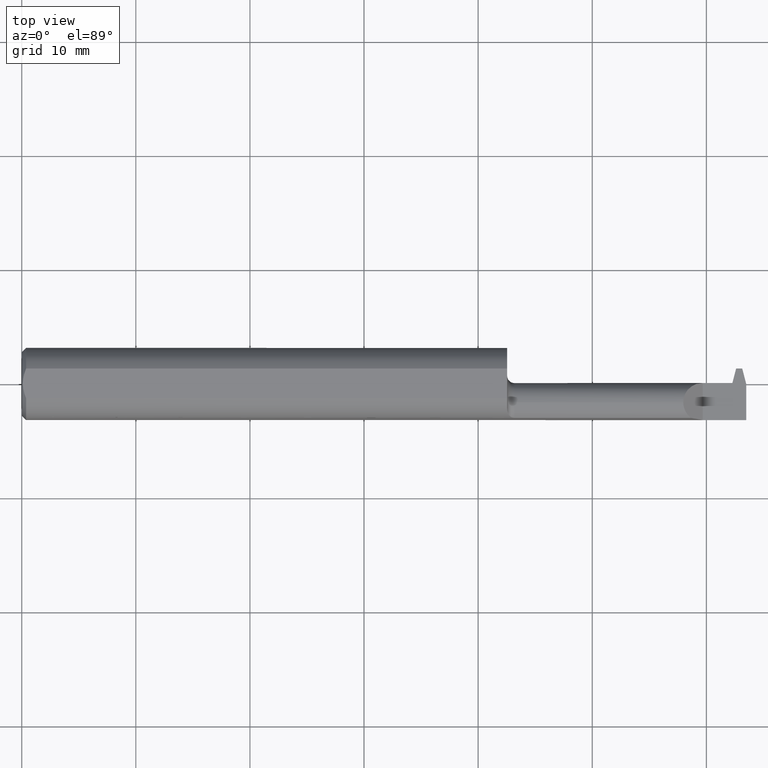
[diagram: clean part render]
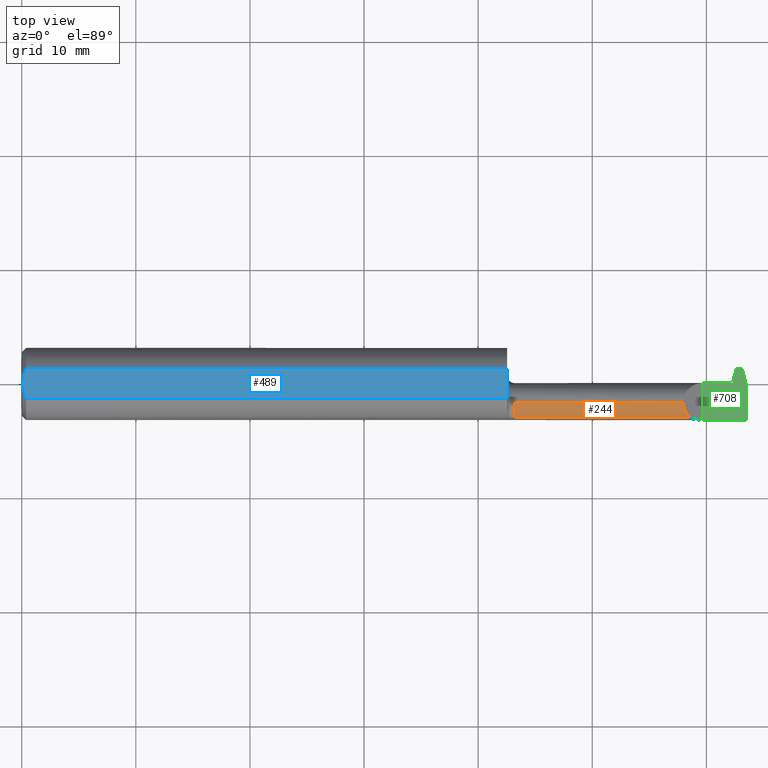
[diagram: same view with three faces highlighted in distinct colors, each labeled with its STEP entity id]
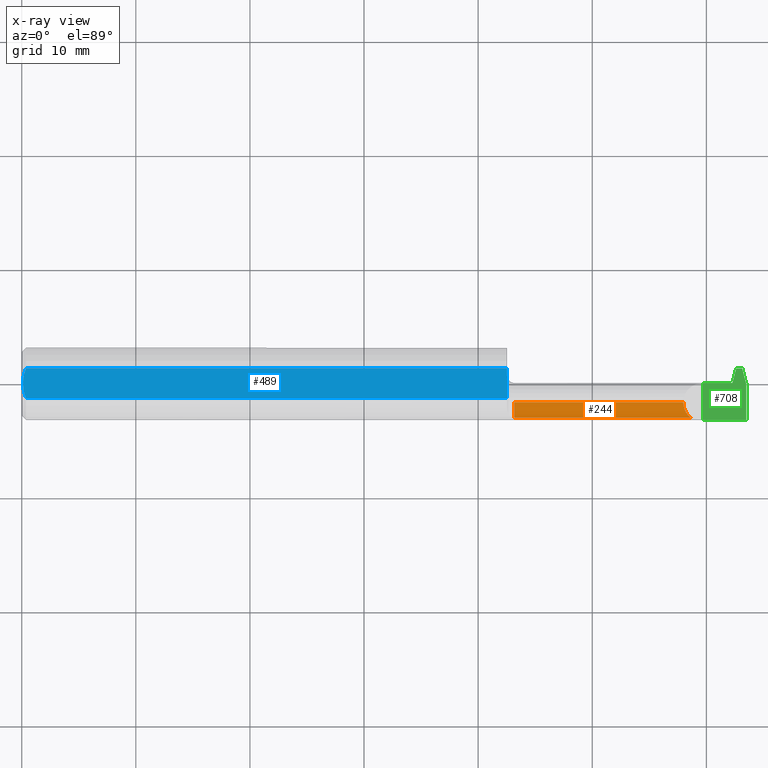
[diagram: x-ray of the same camera — body ghosted, the three highlighted faces saturated]
A machine part, top view with three faces highlighted in distinct colors.
The next image is the same camera in x-ray (body ghosted, the three faces saturated) — at least one of them is partly hidden behind the body in this view.
Their STEP definitions:

[orange] entity #244 — the highlighted cylindrical surface (edge-blend (fillet) strip) has radius 1.7145 mm, axis along (-1, -0, -0).
#14 = CARTESIAN_POINT ( 'NONE',  ( 2.308991305842072794, -0.1178880730380730268, 0.04110869415792675619 ) ) ;
#35 = CARTESIAN_POINT ( 'NONE',  ( 1.675000000000000044, -0.06435000000000003217, 0.000000000000000000 ) ) ;
#39 = CYLINDRICAL_SURFACE ( 'NONE', #254, 0.06750000000000001832 ) ;
#52 = DIRECTION ( 'NONE',  ( -1.000000000000000000, -0.000000000000000000, -0.000000000000000000 ) ) ;
#71 = EDGE_CURVE ( 'NONE', #664, #278, #633, .T. ) ;
#99 = CARTESIAN_POINT ( 'NONE',  ( 1.675000000000000044, -0.06435000000000003217, 0.06750000000000001832 ) ) ;
#110 = ORIENTED_EDGE ( 'NONE', *, *, #642, .F. ) ;
#168 = VERTEX_POINT ( 'NONE', #852 ) ;
#240 = EDGE_CURVE ( 'NONE', #278, #703, #405, .T. ) ;
#244 = ADVANCED_FACE ( 'NONE', ( #869 ), #39, .T. ) ;
#254 = AXIS2_PLACEMENT_3D ( 'NONE', #35, #876, #492 ) ;
#278 = VERTEX_POINT ( 'NONE', #791 ) ;
#302 = DIRECTION ( 'NONE',  ( 1.000000000000000000, 0.000000000000000000, 0.000000000000000000 ) ) ;
#327 = VECTOR ( 'NONE', #52, 39.37007874015748143 ) ;
#329 = AXIS2_PLACEMENT_3D ( 'NONE', #535, #302, #610 ) ;
#370 = CARTESIAN_POINT ( 'NONE',  ( 2.282599999999999518, -0.08571428085691458476, 0.06750000000000000444 ) ) ;
#384 = ORIENTED_EDGE ( 'NONE', *, *, #430, .T. ) ;
#397 = VECTOR ( 'NONE', #959, 39.37007874015748143 ) ;
#405 = LINE ( 'NONE', #484, #397 ) ;
#428 = ORIENTED_EDGE ( 'NONE', *, *, #240, .T. ) ;
#430 = EDGE_CURVE ( 'NONE', #168, #664, #721, .T. ) ;
#442 = CARTESIAN_POINT ( 'NONE',  ( 2.282599999999999962, -0.06435000000000003217, 0.06750000000000001832 ) ) ;
#484 = CARTESIAN_POINT ( 'NONE',  ( 2.062500000000000000, -0.1178880730380729852, 0.04110869415792685333 ) ) ;
#492 = DIRECTION ( 'NONE',  ( 0.000000000000000000, 0.000000000000000000, 1.000000000000000000 ) ) ;
#535 = CARTESIAN_POINT ( 'NONE',  ( 1.699999999999999956, -0.06435000000000003217, 0.000000000000000000 ) ) ;
#574 =( BOUNDED_CURVE ( )  B_SPLINE_CURVE ( 3, ( #442, #370, #597, #657 ),
 .UNSPECIFIED., .F., .T. ) 
 B_SPLINE_CURVE_WITH_KNOTS ( ( 4, 4 ),
 ( 0.000000000000000000, 0.9159748057925681808 ),
 .UNSPECIFIED. ) 
 CURVE ( )  GEOMETRIC_REPRESENTATION_ITEM ( )  RATIONAL_B_SPLINE_CURVE ( ( 1.000000000000000000, 0.9312961138972046804, 0.9312961138972046804, 1.000000000000000000 ) ) 
 REPRESENTATION_ITEM ( '' )  );
#597 = CARTESIAN_POINT ( 'NONE',  ( 2.292046084672837658, -0.1048768480358367172, 0.05805391532716226016 ) ) ;
#610 = DIRECTION ( 'NONE',  ( 0.000000000000000000, 0.000000000000000000, -1.000000000000000000 ) ) ;
#633 = CIRCLE ( 'NONE', #329, 0.06750000000000001832 ) ;
#642 = EDGE_CURVE ( 'NONE', #168, #703, #574, .T. ) ;
#657 = CARTESIAN_POINT ( 'NONE',  ( 2.308991305842072794, -0.1178880730380730268, 0.04110869415792675619 ) ) ;
#664 = VERTEX_POINT ( 'NONE', #978 ) ;
#703 = VERTEX_POINT ( 'NONE', #14 ) ;
#721 = LINE ( 'NONE', #99, #327 ) ;
#729 = ORIENTED_EDGE ( 'NONE', *, *, #71, .T. ) ;
#791 = CARTESIAN_POINT ( 'NONE',  ( 1.699999999999999956, -0.1178880730380729852, 0.04110869415792685333 ) ) ;
#852 = CARTESIAN_POINT ( 'NONE',  ( 2.282599999999999962, -0.06435000000000003217, 0.06750000000000001832 ) ) ;
#869 = FACE_OUTER_BOUND ( 'NONE', #923, .T. ) ;
#876 = DIRECTION ( 'NONE',  ( -1.000000000000000000, -0.000000000000000000, -0.000000000000000000 ) ) ;
#923 = EDGE_LOOP ( 'NONE', ( #110, #384, #729, #428 ) ) ;
#959 = DIRECTION ( 'NONE',  ( 1.000000000000000000, 0.000000000000000000, 0.000000000000000000 ) ) ;
#978 = CARTESIAN_POINT ( 'NONE',  ( 1.699999999999999956, -0.06435000000000003217, 0.06750000000000001832 ) ) ;

[blue] entity #489 — the highlighted planar face has unit normal (-0, 0, -1).
#27 = CARTESIAN_POINT ( 'NONE',  ( 0.005080301127456087092, -0.01778481300359936387, 0.1138500000000000206 ) ) ;
#46 = B_SPLINE_CURVE_WITH_KNOTS ( 'NONE', 3,
 ( #654, #962, #27, #864, #330, #637 ),
 .UNSPECIFIED., .F., .F.,
 ( 4, 2, 4 ),
 ( 0.002543458196361374386, 0.003213918189955199643, 0.003884378183549024900 ),
 .UNSPECIFIED. ) ;
#62 = CARTESIAN_POINT ( 'NONE',  ( 0.01499999999999970281, 0.05124158467494929065, 0.1138500000000000068 ) ) ;
#153 = AXIS2_PLACEMENT_3D ( 'NONE', #797, #944, #787 ) ;
#171 = CARTESIAN_POINT ( 'NONE',  ( 0.003999999999982594735, -1.276290005483319770E-15, 0.1138500000000000068 ) ) ;
#180 = CARTESIAN_POINT ( 'NONE',  ( 0.01499999999999970281, 0.05124158467494929065, 0.1138500000000000068 ) ) ;
#206 = DIRECTION ( 'NONE',  ( 0.000000000000000000, -1.000000000000000000, 0.000000000000000000 ) ) ;
#223 = VERTEX_POINT ( 'NONE', #171 ) ;
#226 = VERTEX_POINT ( 'NONE', #569 ) ;
#281 = CARTESIAN_POINT ( 'NONE',  ( 1.675000000000000044, 0.1000000000000000056, 0.1138500000000000068 ) ) ;
#299 = CARTESIAN_POINT ( 'NONE',  ( 0.003999999999999733803, 0.008800694614867364887, 0.1138500000000000068 ) ) ;
#330 = CARTESIAN_POINT ( 'NONE',  ( 0.01167347033176715718, -0.04313650299737421812, 0.1138500000000000068 ) ) ;
#334 = CARTESIAN_POINT ( 'NONE',  ( 0.01167190377471843954, 0.04313268608482607319, 0.1138500000000000068 ) ) ;
#356 = EDGE_CURVE ( 'NONE', #844, #896, #882, .T. ) ;
#371 = ORIENTED_EDGE ( 'NONE', *, *, #740, .F. ) ;
#410 = CARTESIAN_POINT ( 'NONE',  ( 2.500000000000000000, 0.05124158467494929065, 0.1138500000000000068 ) ) ;
#415 = VERTEX_POINT ( 'NONE', #62 ) ;
#422 = CARTESIAN_POINT ( 'NONE',  ( 1.675000000000000044, 0.05124158467494929065, 0.1138500000000000068 ) ) ;
#470 = ORIENTED_EDGE ( 'NONE', *, *, #532, .T. ) ;
#475 = VECTOR ( 'NONE', #206, 39.37007874015748143 ) ;
#482 = LINE ( 'NONE', #410, #735 ) ;
#489 = ADVANCED_FACE ( 'NONE', ( #868 ), #585, .F. ) ;
#532 = EDGE_CURVE ( 'NONE', #223, #226, #46, .T. ) ;
#534 = B_SPLINE_CURVE_WITH_KNOTS ( 'NONE', 3,
 ( #180, #334, #640, #568, #299, #981 ),
 .UNSPECIFIED., .F., .F.,
 ( 4, 2, 4 ),
 ( 0.001209797888329797611, 0.001876628042345585999, 0.002543458196361374386 ),
 .UNSPECIFIED. ) ;
#555 = EDGE_CURVE ( 'NONE', #415, #223, #534, .T. ) ;
#560 = ORIENTED_EDGE ( 'NONE', *, *, #356, .F. ) ;
#568 = CARTESIAN_POINT ( 'NONE',  ( 0.005030588787081553478, 0.01748826716933455164, 0.1138499999999999790 ) ) ;
#569 = CARTESIAN_POINT ( 'NONE',  ( 0.01499999999999969413, -0.05124158467494929065, 0.1138500000000000068 ) ) ;
#585 = PLANE ( 'NONE',  #153 ) ;
#596 = ORIENTED_EDGE ( 'NONE', *, *, #555, .T. ) ;
#634 = EDGE_LOOP ( 'NONE', ( #560, #877, #596, #470, #371 ) ) ;
#637 = CARTESIAN_POINT ( 'NONE',  ( 0.01499999999999969413, -0.05124158467494929065, 0.1138500000000000068 ) ) ;
#640 = CARTESIAN_POINT ( 'NONE',  ( 0.008866562462787448695, 0.03466860267591459488, 0.1138500000000000206 ) ) ;
#654 = CARTESIAN_POINT ( 'NONE',  ( 0.003999999999982594735, -1.276290005483319770E-15, 0.1138500000000000068 ) ) ;
#685 = LINE ( 'NONE', #700, #792 ) ;
#700 = CARTESIAN_POINT ( 'NONE',  ( 2.500000000000000000, -0.05124158467494929065, 0.1138500000000000068 ) ) ;
#715 = DIRECTION ( 'NONE',  ( 1.000000000000000000, 0.000000000000000000, 0.000000000000000000 ) ) ;
#735 = VECTOR ( 'NONE', #715, 39.37007874015748143 ) ;
#740 = EDGE_CURVE ( 'NONE', #896, #226, #685, .T. ) ;
#760 = DIRECTION ( 'NONE',  ( -1.000000000000000000, -0.000000000000000000, -0.000000000000000000 ) ) ;
#787 = DIRECTION ( 'NONE',  ( -1.000000000000000000, 0.000000000000000000, 0.000000000000000000 ) ) ;
#789 = CARTESIAN_POINT ( 'NONE',  ( 1.675000000000000044, -0.05124158467494927677, 0.1138500000000000068 ) ) ;
#792 = VECTOR ( 'NONE', #760, 39.37007874015748143 ) ;
#797 = CARTESIAN_POINT ( 'NONE',  ( 0.000000000000000000, 0.1000000000000000056, 0.1138500000000000068 ) ) ;
#844 = VERTEX_POINT ( 'NONE', #422 ) ;
#864 = CARTESIAN_POINT ( 'NONE',  ( 0.008925039223039965899, -0.03485448893270377130, 0.1138499999999999790 ) ) ;
#868 = FACE_OUTER_BOUND ( 'NONE', #634, .T. ) ;
#877 = ORIENTED_EDGE ( 'NONE', *, *, #927, .F. ) ;
#882 = LINE ( 'NONE', #281, #475 ) ;
#896 = VERTEX_POINT ( 'NONE', #789 ) ;
#927 = EDGE_CURVE ( 'NONE', #415, #844, #482, .T. ) ;
#944 = DIRECTION ( 'NONE',  ( -0.000000000000000000, 0.000000000000000000, -1.000000000000000000 ) ) ;
#962 = CARTESIAN_POINT ( 'NONE',  ( 0.004000000000000225597, -0.008848600531297691474, 0.1138500000000000068 ) ) ;
#981 = CARTESIAN_POINT ( 'NONE',  ( 0.003999999999982594735, -1.276290005483319770E-15, 0.1138500000000000068 ) ) ;

[green] entity #708 — the highlighted planar face has unit normal (-0, 0, -1).
#6 = CARTESIAN_POINT ( 'NONE',  ( 2.500000000000000000, -0.0009839833285807519231, 0.000000000000000000 ) ) ;
#28 = VECTOR ( 'NONE', #343, 39.37007874015748143 ) ;
#32 = EDGE_CURVE ( 'NONE', #693, #883, #294, .T. ) ;
#44 = CARTESIAN_POINT ( 'NONE',  ( 2.350000000000000089, 0.1499999999999999944, -3.367667473011537583E-17 ) ) ;
#45 = EDGE_CURVE ( 'NONE', #793, #656, #984, .T. ) ;
#103 = CARTESIAN_POINT ( 'NONE',  ( 1.675000000000000044, 0.003149999999999980507, -3.367667473011537583E-17 ) ) ;
#112 = LINE ( 'NONE', #44, #28 ) ;
#126 = VECTOR ( 'NONE', #934, 39.37007874015748143 ) ;
#150 = DIRECTION ( 'NONE',  ( -0.000000000000000000, 0.000000000000000000, -1.000000000000000000 ) ) ;
#154 = EDGE_LOOP ( 'NONE', ( #446, #737, #947, #854, #434, #751, #542, #506 ) ) ;
#167 = LINE ( 'NONE', #321, #696 ) ;
#175 = EDGE_CURVE ( 'NONE', #310, #521, #167, .T. ) ;
#189 = VECTOR ( 'NONE', #392, 39.37007874015748143 ) ;
#220 = CARTESIAN_POINT ( 'NONE',  ( 2.452069120782205847, 0.003149999999999971833, 0.000000000000000000 ) ) ;
#237 = PLANE ( 'NONE',  #556 ) ;
#252 = CARTESIAN_POINT ( 'NONE',  ( 2.452069120782205847, 0.003149999999999971833, 0.000000000000000000 ) ) ;
#253 = VECTOR ( 'NONE', #288, 39.37007874015748143 ) ;
#288 = DIRECTION ( 'NONE',  ( 1.000000000000000000, 1.067128122525114190E-16, -0.000000000000000000 ) ) ;
#294 = LINE ( 'NONE', #220, #253 ) ;
#297 = CARTESIAN_POINT ( 'NONE',  ( 2.350000000000000089, 0.05314999999999979463, -3.367667473011537583E-17 ) ) ;
#310 = VERTEX_POINT ( 'NONE', #641 ) ;
#311 = DIRECTION ( 'NONE',  ( -1.000000000000000000, 0.000000000000000000, 0.000000000000000000 ) ) ;
#321 = CARTESIAN_POINT ( 'NONE',  ( 2.500000000000000000, -0.1248500000000000026, -3.367667473011537583E-17 ) ) ;
#322 = EDGE_CURVE ( 'NONE', #793, #701, #722, .T. ) ;
#343 = DIRECTION ( 'NONE',  ( -0.000000000000000000, 1.000000000000000000, -0.000000000000000000 ) ) ;
#392 = DIRECTION ( 'NONE',  ( 0.2503800040544323924, 0.9681476403781100748, -0.000000000000000000 ) ) ;
#412 = CARTESIAN_POINT ( 'NONE',  ( 2.500000000000000000, 0.1499999999999999944, -3.367667473011537583E-17 ) ) ;
#434 = ORIENTED_EDGE ( 'NONE', *, *, #503, .F. ) ;
#446 = ORIENTED_EDGE ( 'NONE', *, *, #45, .T. ) ;
#464 = CARTESIAN_POINT ( 'NONE',  ( 2.465568958685582679, 0.05535000000000005194, 0.000000000000000000 ) ) ;
#474 = CARTESIAN_POINT ( 'NONE',  ( 2.486000000000000654, 0.05314999999999990565, 0.000000000000000000 ) ) ;
#501 = EDGE_CURVE ( 'NONE', #310, #701, #726, .T. ) ;
#502 = LINE ( 'NONE', #103, #126 ) ;
#503 = EDGE_CURVE ( 'NONE', #521, #892, #112, .T. ) ;
#506 = ORIENTED_EDGE ( 'NONE', *, *, #322, .F. ) ;
#521 = VERTEX_POINT ( 'NONE', #710 ) ;
#542 = ORIENTED_EDGE ( 'NONE', *, *, #501, .T. ) ;
#553 = CARTESIAN_POINT ( 'NONE',  ( 2.485431041314417833, 0.05535000000000005194, 0.000000000000000000 ) ) ;
#556 = AXIS2_PLACEMENT_3D ( 'NONE', #834, #150, #311 ) ;
#607 = DIRECTION ( 'NONE',  ( -1.000000000000000000, -6.935172863111265358E-16, 0.000000000000000000 ) ) ;
#608 = CARTESIAN_POINT ( 'NONE',  ( 2.442069120782206060, 0.003149999999999970966, 0.000000000000000000 ) ) ;
#612 = FACE_OUTER_BOUND ( 'NONE', #154, .T. ) ;
#641 = CARTESIAN_POINT ( 'NONE',  ( 2.500000000000000000, -0.1248499999999999471, -3.367667473011537583E-17 ) ) ;
#656 = VERTEX_POINT ( 'NONE', #744 ) ;
#693 = VERTEX_POINT ( 'NONE', #608 ) ;
#696 = VECTOR ( 'NONE', #932, 39.37007874015748143 ) ;
#701 = VERTEX_POINT ( 'NONE', #6 ) ;
#708 = ADVANCED_FACE ( 'NONE', ( #612 ), #237, .F. ) ;
#710 = CARTESIAN_POINT ( 'NONE',  ( 2.350000000000000089, -0.1248499999999999888, -3.367667473011536351E-17 ) ) ;
#716 = DIRECTION ( 'NONE',  ( -0.000000000000000000, 1.000000000000000000, -0.000000000000000000 ) ) ;
#722 = LINE ( 'NONE', #553, #889 ) ;
#726 = LINE ( 'NONE', #412, #870 ) ;
#727 = EDGE_CURVE ( 'NONE', #883, #656, #842, .T. ) ;
#737 = ORIENTED_EDGE ( 'NONE', *, *, #727, .F. ) ;
#744 = CARTESIAN_POINT ( 'NONE',  ( 2.464999999999999858, 0.05314999999999987096, -3.367667473011537583E-17 ) ) ;
#751 = ORIENTED_EDGE ( 'NONE', *, *, #175, .F. ) ;
#793 = VERTEX_POINT ( 'NONE', #474 ) ;
#812 = VECTOR ( 'NONE', #607, 39.37007874015748143 ) ;
#834 = CARTESIAN_POINT ( 'NONE',  ( 2.350000000000000089, 0.1499999999999999944, -3.367667473011537583E-17 ) ) ;
#842 = LINE ( 'NONE', #464, #189 ) ;
#853 = EDGE_CURVE ( 'NONE', #892, #693, #502, .T. ) ;
#854 = ORIENTED_EDGE ( 'NONE', *, *, #853, .F. ) ;
#862 = DIRECTION ( 'NONE',  ( 0.2503800040544350014, -0.9681476403781094087, 0.000000000000000000 ) ) ;
#870 = VECTOR ( 'NONE', #716, 39.37007874015748143 ) ;
#883 = VERTEX_POINT ( 'NONE', #252 ) ;
#889 = VECTOR ( 'NONE', #862, 39.37007874015748854 ) ;
#892 = VERTEX_POINT ( 'NONE', #949 ) ;
#932 = DIRECTION ( 'NONE',  ( -1.000000000000000000, -0.000000000000000000, -0.000000000000000000 ) ) ;
#934 = DIRECTION ( 'NONE',  ( 1.000000000000000000, 0.000000000000000000, 0.000000000000000000 ) ) ;
#947 = ORIENTED_EDGE ( 'NONE', *, *, #32, .F. ) ;
#949 = CARTESIAN_POINT ( 'NONE',  ( 2.350000000000000089, 0.003149999999999971833, -3.367667473011536351E-17 ) ) ;
#984 = LINE ( 'NONE', #297, #812 ) ;